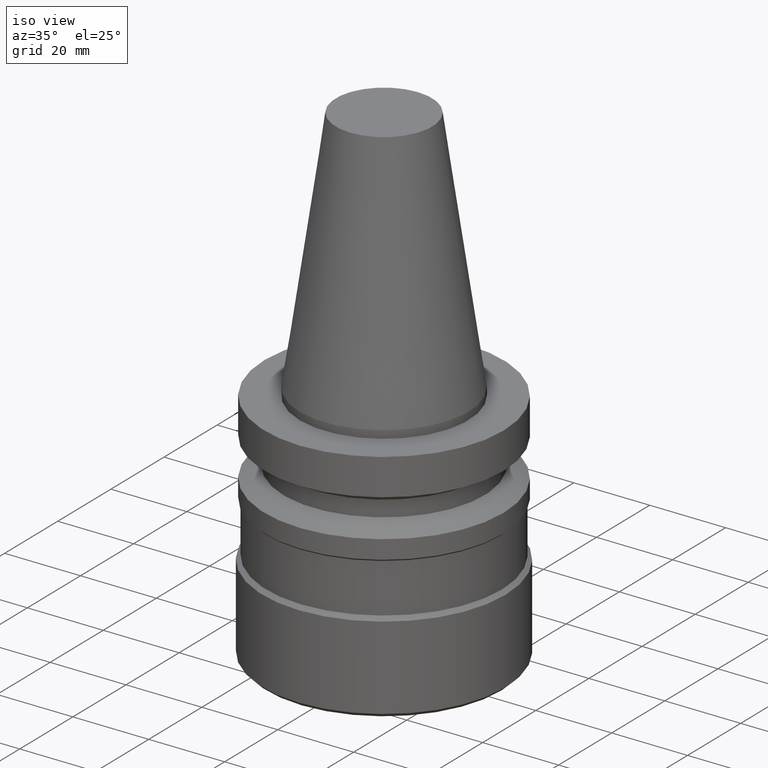
[diagram: clean part render]
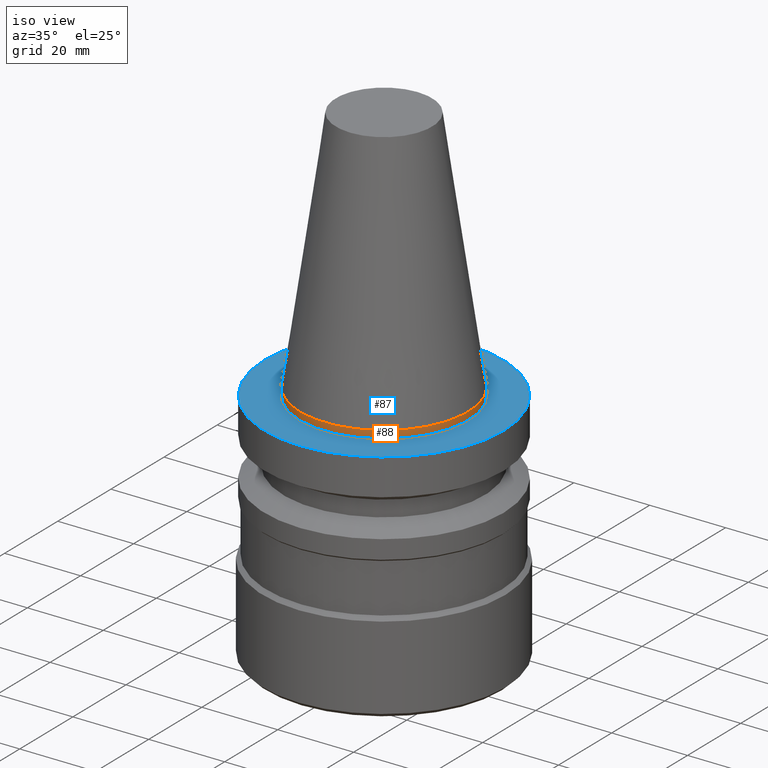
[diagram: same view with the hole feature highlighted: cylindrical wall and planar end face, labeled with their STEP entity ids]
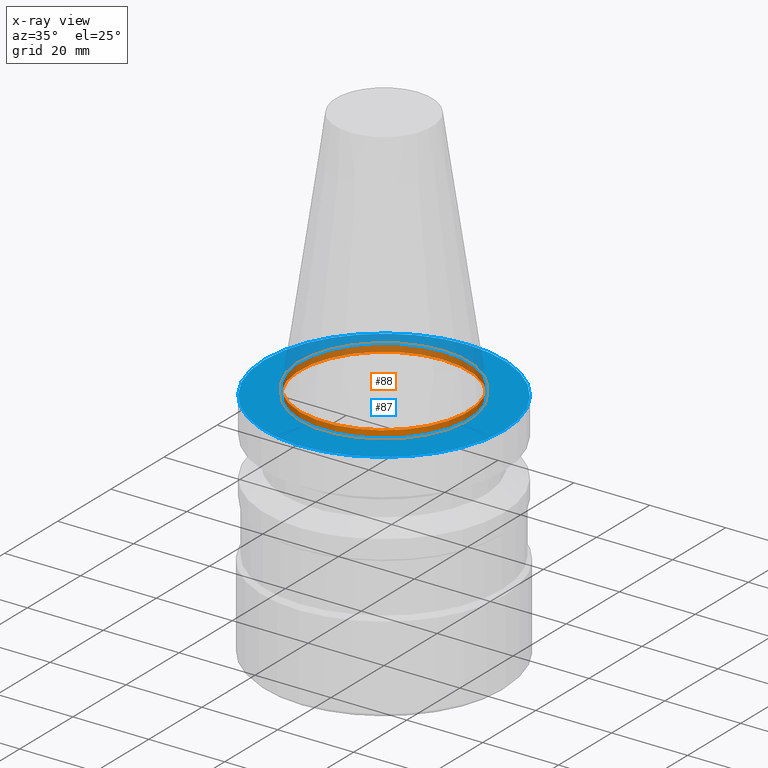
[diagram: x-ray of the same camera — body ghosted, the hole faces saturated]
A machine part, iso view. The highlighted faces form one hole feature of diameter 44.45 mm: the cylindrical wall (entity #88, orange) and its adjacent planar end face (entity #87, blue) — they share a circular edge in the B-rep.
The next image is the same camera in x-ray (body ghosted, the hole faces saturated) — the bore reads through the body.
Wall:
#88=ADVANCED_FACE('',(#128,#129),#130,.T.);
#128=FACE_BOUND('',#171,.T.);
#129=FACE_BOUND('',#172,.T.);
#130=CYLINDRICAL_SURFACE('',#173,22.225);
#171=EDGE_LOOP('',(#240));
#172=EDGE_LOOP('',(#241));
#173=AXIS2_PLACEMENT_3D('',#242,#243,#244);
#240=ORIENTED_EDGE('',*,*,#263,.F.);
#241=ORIENTED_EDGE('',*,*,#262,.T.);
#242=CARTESIAN_POINT('',(6.12323399573677E-017,1.22464679914735E-016,-1.0));
#243=DIRECTION('',(6.12323399573677E-017,1.22464679914735E-016,-1.0));
#244=DIRECTION('',(-1.23259516440783E-032,1.0,1.22464679914735E-016));
#262=EDGE_CURVE('',#288,#288,#289,.T.);
#263=EDGE_CURVE('',#290,#290,#291,.T.);
#288=VERTEX_POINT('',#316);
#289=CIRCLE('',#317,22.225);
#290=VERTEX_POINT('',#318);
#291=CIRCLE('',#319,22.225);
#316=CARTESIAN_POINT('',(1.22464679914735E-016,22.225,-2.0));
#317=AXIS2_PLACEMENT_3D('',#356,#357,#358);
#318=CARTESIAN_POINT('',(-2.73944275289641E-031,22.225,2.72177751110499E-015));
#319=AXIS2_PLACEMENT_3D('',#359,#360,#361);
#356=CARTESIAN_POINT('',(1.22464679914735E-016,2.44929359829471E-016,-2.0));
#357=DIRECTION('',(-6.12323399573677E-017,-1.22464679914735E-016,1.0));
#358=DIRECTION('',(-1.23259516440783E-032,1.0,1.22464679914735E-016));
#359=CARTESIAN_POINT('',(0.0,0.0,0.0));
#360=DIRECTION('',(-6.12323399573677E-017,-1.22464679914735E-016,1.0));
#361=DIRECTION('',(-1.23259516440783E-032,1.0,1.22464679914735E-016));
End face:
#87=ADVANCED_FACE('',(#125,#126),#127,.T.);
#125=FACE_BOUND('',#168,.T.);
#126=FACE_OUTER_BOUND('',#169,.T.);
#127=PLANE('',#170);
#168=EDGE_LOOP('',(#235));
#169=EDGE_LOOP('',(#236));
#170=AXIS2_PLACEMENT_3D('',#237,#238,#239);
#235=ORIENTED_EDGE('',*,*,#262,.F.);
#236=ORIENTED_EDGE('',*,*,#261,.T.);
#237=CARTESIAN_POINT('',(1.22464679914735E-016,26.8625,-2.0));
#238=DIRECTION('',(-6.12323399573677E-017,-1.22464679914735E-016,1.0));
#239=DIRECTION('',(-1.23259516440783E-032,1.0,1.22464679914735E-016));
#261=EDGE_CURVE('',#286,#286,#287,.T.);
#262=EDGE_CURVE('',#288,#288,#289,.T.);
#286=VERTEX_POINT('',#314);
#287=CIRCLE('',#315,31.5);
#288=VERTEX_POINT('',#316);
#289=CIRCLE('',#317,22.225);
#314=CARTESIAN_POINT('',(1.22464679914735E-016,31.5,-2.0));
#315=AXIS2_PLACEMENT_3D('',#353,#354,#355);
#316=CARTESIAN_POINT('',(1.22464679914735E-016,22.225,-2.0));
#317=AXIS2_PLACEMENT_3D('',#356,#357,#358);
#353=CARTESIAN_POINT('',(1.22464679914735E-016,2.44929359829471E-016,-2.0));
#354=DIRECTION('',(-6.12323399573677E-017,-1.22464679914735E-016,1.0));
#355=DIRECTION('',(-1.23259516440783E-032,1.0,1.22464679914735E-016));
#356=CARTESIAN_POINT('',(1.22464679914735E-016,2.44929359829471E-016,-2.0));
#357=DIRECTION('',(-6.12323399573677E-017,-1.22464679914735E-016,1.0));
#358=DIRECTION('',(-1.23259516440783E-032,1.0,1.22464679914735E-016));